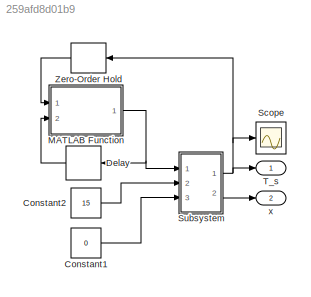
MODEL slx_259afd8d01b9
KIND model
CONFIG AbsTol = auto
CONFIG EnableMultiTasking = off
CONFIG FixedStep = auto
CONFIG InitFcn = addpath('dynamics\')\nparameters
CONFIG MaxStep = auto
CONFIG MinStep = auto
CONFIG RelTol = 1e-3
CONFIG SampleTimeConstraint = Unconstrained
CONFIG Solver = VariableStepAuto
CONFIG SolverName = VariableStepAuto
CONFIG StartTime = 0.0
CONFIG StopTime = 10.0
BLOCK [Constant] Constant1
  Value = 0
BLOCK [Constant] Constant2
  Value = 15
BLOCK [Delay] Delay
  DelayLength = 1
  InputPortMap = u0
  NameLocation = top
  Ports = [1, 1]
  SampleTime = t_sample
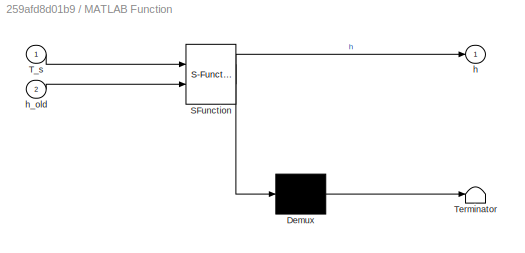
BLOCK [SubSystem] MATLAB Function
  ErrorFcn = Stateflow.Translate.translate
  PermitHierarchicalResolution = ExplicitOnly
  Ports = [2, 1]
  RequestExecContextInheritance = off
  SFBlockType = MATLAB Function
  TreatAsAtomicUnit = on
BLOCK [Demux] MATLAB Function/ Demux 
  Outputs = 1
  Ports = [1, 1]
BLOCK [S-Function] MATLAB Function/ SFunction 
  EnableBusSupport = on
  FunctionName = sf_sfun
  PortCounts = [2 2]
  Ports = [2, 2]
  SFcnIsStateOwnerBlock = off
  SFunctionDeploymentMode = off
  Tag = Stateflow S-Function 2
BLOCK [Terminator] MATLAB Function/ Terminator 
BLOCK [Inport] MATLAB Function/T_s
BLOCK [Outport] MATLAB Function/h
BLOCK [Inport] MATLAB Function/h_old
  Port = 2
BLOCK [Scope] Scope
  Floating = off
  NumInputPorts = 1
  Ports = [1]
  ScopeSpecificationString = Simulink.scopes.TimeScopeBlockCfg('CurrentConfiguration', extmgr.ConfigurationSet(extmgr.Configuration('Core','General UI',true),extmgr.Configuration('Core','Source UI',true),extmgr.Configuration('Sources','WiredSimulink',true),extmgr.Configuration('Visuals','Time Domain',true,'SerializedDisplays',{struct('MinYLimReal','19.73199','MaxYLimReal','22.38073','YLabelReal','','MinYLimMag','19.73199','Ma...<+1363ch>
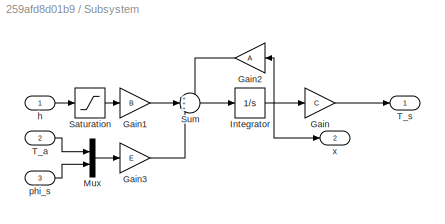
BLOCK [SubSystem] Subsystem
  Ports = [3, 2]
  RequestExecContextInheritance = off
BLOCK [Gain] Subsystem/Gain
  Gain = C
  InitFcn = parameters
  Multiplication = Matrix(K*u)
BLOCK [Gain] Subsystem/Gain1
  Gain = B
  Multiplication = Matrix(K*u)
BLOCK [Gain] Subsystem/Gain2
  Gain = A
  Multiplication = Matrix(K*u)
  NameLocation = top
BLOCK [Gain] Subsystem/Gain3
  Gain = E
  Multiplication = Matrix(K*u)
BLOCK [Integrator] Subsystem/Integrator
  InitialCondition = x_0
  Ports = [1, 1]
BLOCK [Mux] Subsystem/Mux
  DisplayOption = bar
  Inputs = 2
  Ports = [2, 1]
BLOCK [Saturate] Subsystem/Saturation
  LowerLimit = 0
  UpperLimit = 1
BLOCK [Sum] Subsystem/Sum
  Inputs = +++
  Ports = [3, 1]
BLOCK [Inport] Subsystem/T_a
  Port = 2
BLOCK [Outport] Subsystem/T_s
BLOCK [Inport] Subsystem/h
BLOCK [Inport] Subsystem/phi_s
  Port = 3
BLOCK [Outport] Subsystem/x
  Port = 2
BLOCK [Outport] T_s
BLOCK [ZeroOrderHold] Zero-Order Hold
  NameLocation = top
  SampleTime = -1
BLOCK [Outport] x
  Port = 2
LINE Constant1:1 -> Subsystem:3
LINE Constant2:1 -> Subsystem:2
LINE Delay:1 -> MATLAB Function:2
NET MATLAB Function:1 -> Delay:1, Subsystem:1
LINE Subsystem/Gain1:1 -> Subsystem/Sum:2
LINE Subsystem/Gain2:1 -> Subsystem/Sum:1
LINE Subsystem/Gain3:1 -> Subsystem/Sum:3
LINE Subsystem/Gain:1 -> Subsystem/T_s:1
NET Subsystem/Integrator:1 -> Subsystem/Gain2:1, Subsystem/Gain:1, Subsystem/x:1
LINE Subsystem/Mux:1 -> Subsystem/Gain3:1
LINE Subsystem/Saturation:1 -> Subsystem/Gain1:1
LINE Subsystem/Sum:1 -> Subsystem/Integrator:1
LINE Subsystem/T_a:1 -> Subsystem/Mux:1
LINE Subsystem/h:1 -> Subsystem/Saturation:1
LINE Subsystem/phi_s:1 -> Subsystem/Mux:2
NET Subsystem:1 -> Scope:1, T_s:1, Zero-Order Hold:1
LINE Subsystem:2 -> x:1
LINE Zero-Order Hold:1 -> MATLAB Function:1
note: NET lines group one-source signal fan-out (src -> all destinations, sorted); 1:1 wires keep LINE
CHART MATLAB Function states=1 transitions=1
  STATE_LABEL 'eML_blk_kernel()'
  STATE_LABEL 'SCRIPT:\nfunction h = fcn(T_s, h_old)\n\nif (T_s > 22 && h_old == 1)\n    h = 0;\n    return\nelseif (T_s < 20 && h_old == 0)\n    h = 1;\n    return\nend\n\nh = h_old;\n'
CHART  states=0 transitions=0
